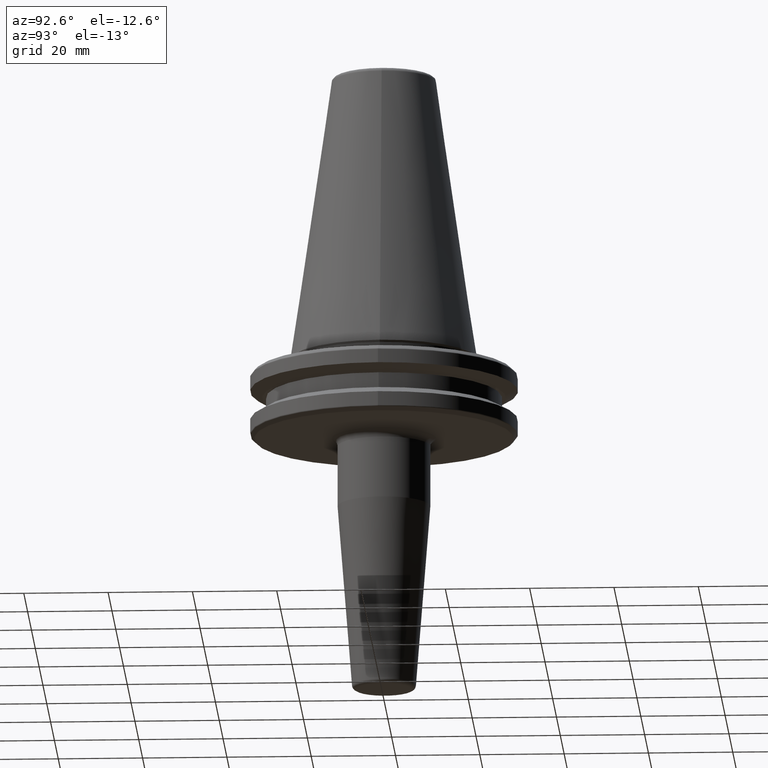
[diagram: clean part render]
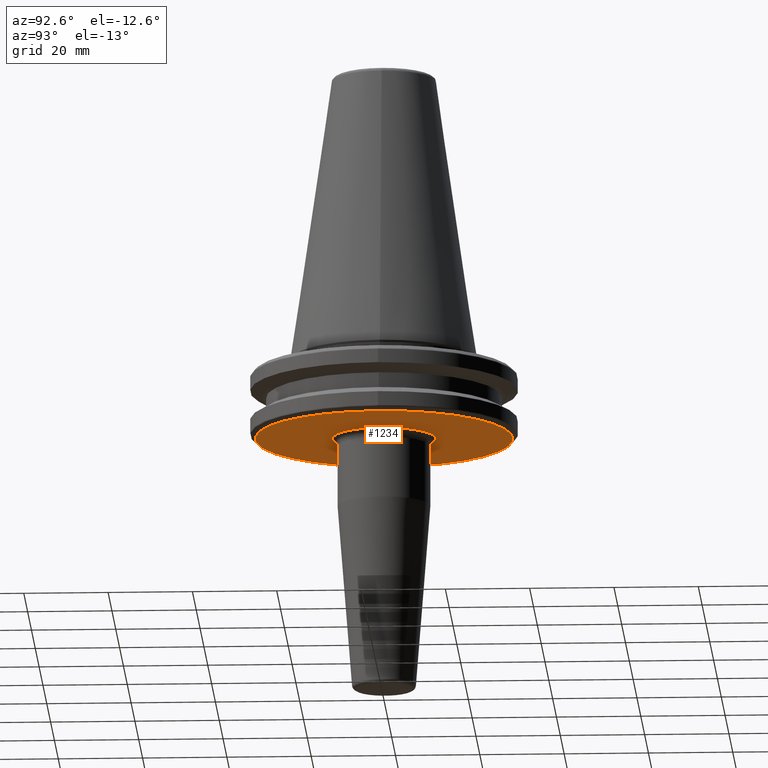
[diagram: same view with one face highlighted and labeled with its STEP entity id]
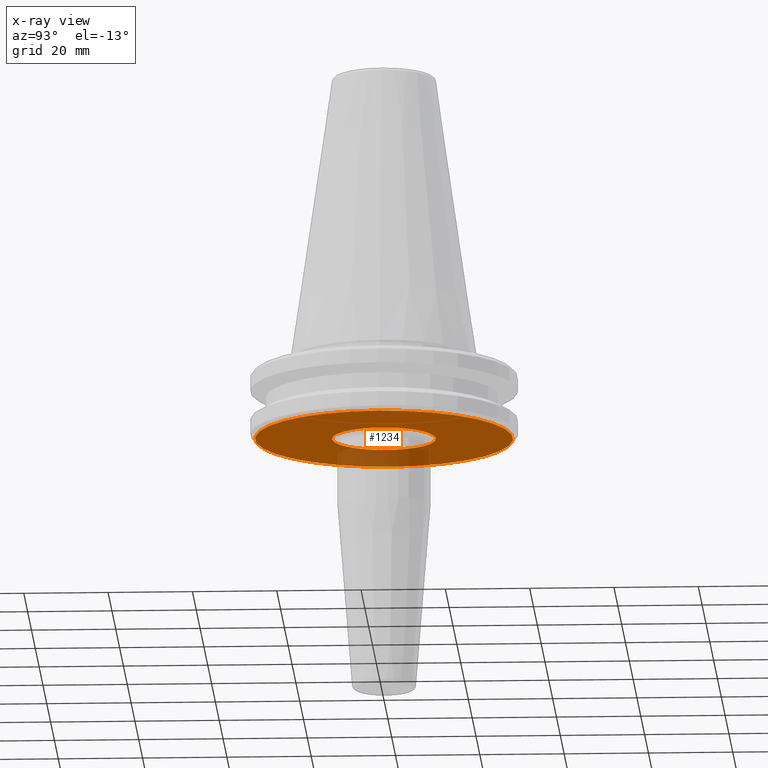
[diagram: x-ray of the same camera — body ghosted, the highlighted face saturated]
A machine part, auxiliary view. The second image highlights one B-rep face of the part: STEP entity #1234.
The next image is the same camera in x-ray: the body ghosted, the highlighted face saturated — about 16% of this face is hidden behind the body in this view.
In plain terms, the highlighted planar face has unit normal (0, 0, -1).
Its self-contained STEP definition (entity closure, byte-faithful):
#16 = DIRECTION ( 'NONE',  ( -1.000000000000000000, 0.0000000000000000000, -0.0000000000000000000 ) ) ;
#28 = EDGE_CURVE ( 'NONE', #93, #617, #842, .T. ) ;
#44 = CIRCLE ( 'NONE', #1149, 30.58431457505076500 ) ;
#57 = AXIS2_PLACEMENT_3D ( 'NONE', #203, #681, #119 ) ;
#64 = FACE_OUTER_BOUND ( 'NONE', #650, .T. ) ;
#93 = VERTEX_POINT ( 'NONE', #98 ) ;
#98 = CARTESIAN_POINT ( 'NONE',  ( 1.509442672782547700E-015, -12.32553478956938900, -19.10000000000000500 ) ) ;
#119 = DIRECTION ( 'NONE',  ( 1.000000000000000000, 0.0000000000000000000, 0.0000000000000000000 ) ) ;
#153 = CARTESIAN_POINT ( 'NONE',  ( -30.58431457505076500, 3.762817415969875600E-015, -19.10000000000000500 ) ) ;
#172 = EDGE_LOOP ( 'NONE', ( #390, #376 ) ) ;
#203 = CARTESIAN_POINT ( 'NONE',  ( 0.0000000000000000000, 0.0000000000000000000, -19.10000000000000500 ) ) ;
#204 = CIRCLE ( 'NONE', #1109, 12.32553478956936600 ) ;
#300 = CARTESIAN_POINT ( 'NONE',  ( 0.0000000000000000000, 2.166680460328873200E-015, -19.10000000000000500 ) ) ;
#309 = PLANE ( 'NONE',  #895 ) ;
#342 = EDGE_CURVE ( 'NONE', #582, #668, #1004, .T. ) ;
#376 = ORIENTED_EDGE ( 'NONE', *, *, #28, .F. ) ;
#387 = CARTESIAN_POINT ( 'NONE',  ( 0.0000000000000000000, 0.0000000000000000000, -19.10000000000000500 ) ) ;
#390 = ORIENTED_EDGE ( 'NONE', *, *, #1194, .F. ) ;
#412 = CARTESIAN_POINT ( 'NONE',  ( 0.0000000000000000000, -1.734723475976807100E-014, -19.10000000000000500 ) ) ;
#496 = DIRECTION ( 'NONE',  ( 1.000000000000000000, 0.0000000000000000000, 0.0000000000000000000 ) ) ;
#515 = DIRECTION ( 'NONE',  ( 1.000000000000000000, 0.0000000000000000000, 0.0000000000000000000 ) ) ;
#582 = VERTEX_POINT ( 'NONE', #807 ) ;
#587 = FACE_BOUND ( 'NONE', #172, .T. ) ;
#599 = CARTESIAN_POINT ( 'NONE',  ( 0.0000000000000000000, 12.32553478956934300, -19.10000000000000500 ) ) ;
#607 = DIRECTION ( 'NONE',  ( 0.0000000000000000000, 0.0000000000000000000, -1.000000000000000000 ) ) ;
#617 = VERTEX_POINT ( 'NONE', #599 ) ;
#650 = EDGE_LOOP ( 'NONE', ( #801, #888 ) ) ;
#668 = VERTEX_POINT ( 'NONE', #153 ) ;
#681 = DIRECTION ( 'NONE',  ( -0.0000000000000000000, -0.0000000000000000000, 1.000000000000000000 ) ) ;
#801 = ORIENTED_EDGE ( 'NONE', *, *, #342, .F. ) ;
#807 = CARTESIAN_POINT ( 'NONE',  ( 30.58431457505076500, 0.0000000000000000000, -19.10000000000000500 ) ) ;
#842 = CIRCLE ( 'NONE', #978, 12.32553478956936600 ) ;
#850 = CARTESIAN_POINT ( 'NONE',  ( 0.0000000000000000000, -1.734723475976807100E-014, -19.10000000000000500 ) ) ;
#888 = ORIENTED_EDGE ( 'NONE', *, *, #1019, .F. ) ;
#895 = AXIS2_PLACEMENT_3D ( 'NONE', #300, #607, #16 ) ;
#978 = AXIS2_PLACEMENT_3D ( 'NONE', #850, #1044, #1139 ) ;
#1004 = CIRCLE ( 'NONE', #57, 30.58431457505076500 ) ;
#1019 = EDGE_CURVE ( 'NONE', #668, #582, #44, .T. ) ;
#1044 = DIRECTION ( 'NONE',  ( 0.0000000000000000000, 0.0000000000000000000, -1.000000000000000000 ) ) ;
#1059 = DIRECTION ( 'NONE',  ( -0.0000000000000000000, -0.0000000000000000000, 1.000000000000000000 ) ) ;
#1077 = DIRECTION ( 'NONE',  ( 0.0000000000000000000, 0.0000000000000000000, -1.000000000000000000 ) ) ;
#1109 = AXIS2_PLACEMENT_3D ( 'NONE', #412, #1077, #515 ) ;
#1139 = DIRECTION ( 'NONE',  ( 1.000000000000000000, 0.0000000000000000000, 0.0000000000000000000 ) ) ;
#1149 = AXIS2_PLACEMENT_3D ( 'NONE', #387, #1059, #496 ) ;
#1194 = EDGE_CURVE ( 'NONE', #617, #93, #204, .T. ) ;
#1234 = ADVANCED_FACE ( 'NONE', ( #587, #64 ), #309, .T. ) ;